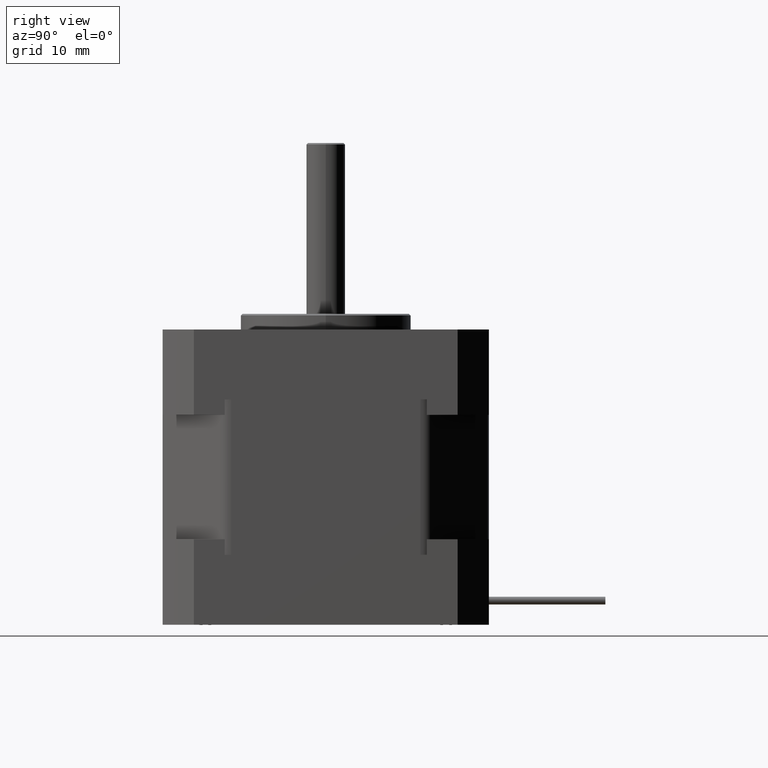
[diagram: clean part render]
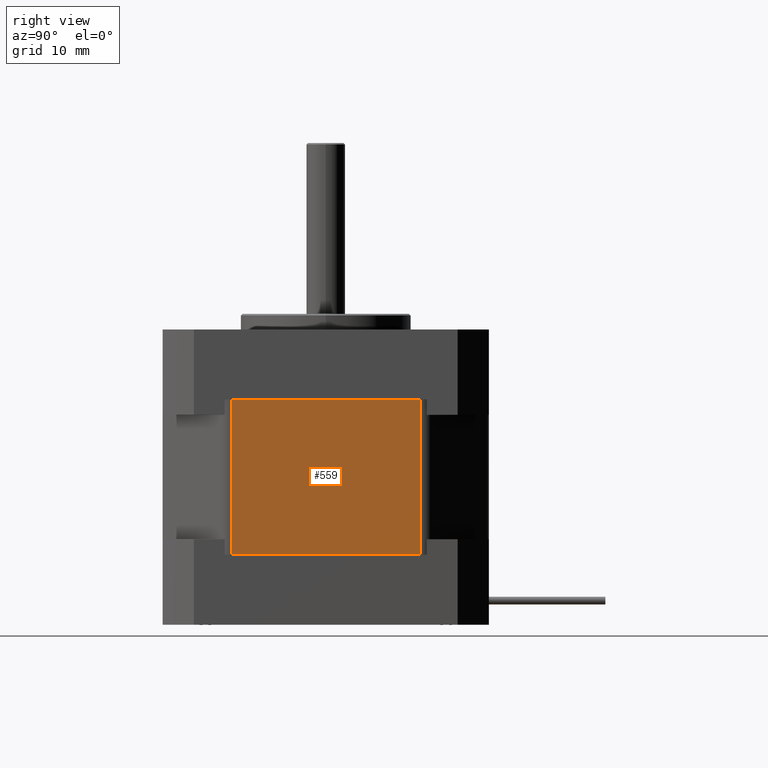
[diagram: same view with one face highlighted and labeled with its STEP entity id]
A machine part, right view. The second image highlights one B-rep face of the part: STEP entity #559.
In plain terms, the highlighted planar face has unit normal (1, 0, 0).
Its self-contained STEP definition (entity closure, byte-faithful):
#320=CARTESIAN_POINT('',(20.999999999999993,12.171572875253831,15.250000000000007));
#321=VERTEX_POINT('',#320);
#329=CARTESIAN_POINT('',(20.999999999999993,12.171572875253831,-4.749999999999992));
#330=VERTEX_POINT('',#329);
#331=CARTESIAN_POINT('',(20.999999999999993,12.171572875253831,15.250000000000007));
#332=DIRECTION('',(0.0,0.0,-1.0));
#333=VECTOR('',#332,20.0);
#334=LINE('',#331,#333);
#335=EDGE_CURVE('',#321,#330,#334,.T.);
#446=CARTESIAN_POINT('',(21.000000000000018,-12.171572875253787,15.250000000000007));
#447=VERTEX_POINT('',#446);
#465=CARTESIAN_POINT('',(21.000000000000018,-12.171572875253787,-4.749999999999992));
#466=VERTEX_POINT('',#465);
#474=CARTESIAN_POINT('',(21.000000000000018,-12.171572875253787,-4.749999999999992));
#475=DIRECTION('',(0.0,0.0,1.0));
#476=VECTOR('',#475,20.0);
#477=LINE('',#474,#476);
#478=EDGE_CURVE('',#466,#447,#477,.T.);
#538=CARTESIAN_POINT('',(20.999999999999993,13.000000000000023,5.250000000000008));
#539=DIRECTION('',(1.0,0.0,0.0));
#540=DIRECTION('',(0.0,0.0,-1.0));
#541=AXIS2_PLACEMENT_3D('',#538,#539,#540);
#542=PLANE('',#541);
#543=ORIENTED_EDGE('',*,*,#335,.F.);
#544=CARTESIAN_POINT('',(20.999999999999993,12.171572875253830,15.250000000000007));
#545=DIRECTION('',(0.0,-1.0,0.0));
#546=VECTOR('',#545,24.343145750507617);
#547=LINE('',#544,#546);
#548=EDGE_CURVE('',#321,#447,#547,.T.);
#549=ORIENTED_EDGE('',*,*,#548,.T.);
#550=ORIENTED_EDGE('',*,*,#478,.F.);
#551=CARTESIAN_POINT('',(21.000000000000018,-12.171572875253787,-4.749999999999992));
#552=DIRECTION('',(0.0,1.0,0.0));
#553=VECTOR('',#552,24.343145750507617);
#554=LINE('',#551,#553);
#555=EDGE_CURVE('',#466,#330,#554,.T.);
#556=ORIENTED_EDGE('',*,*,#555,.T.);
#557=EDGE_LOOP('',(#543,#549,#550,#556));
#558=FACE_OUTER_BOUND('',#557,.T.);
#559=ADVANCED_FACE('',(#558),#542,.T.);